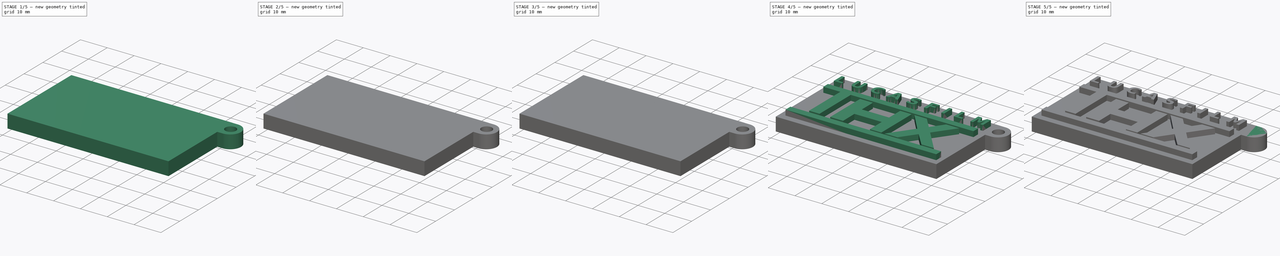
[diagram: build sequence overview — one tinted view per stage of 5, left to right]
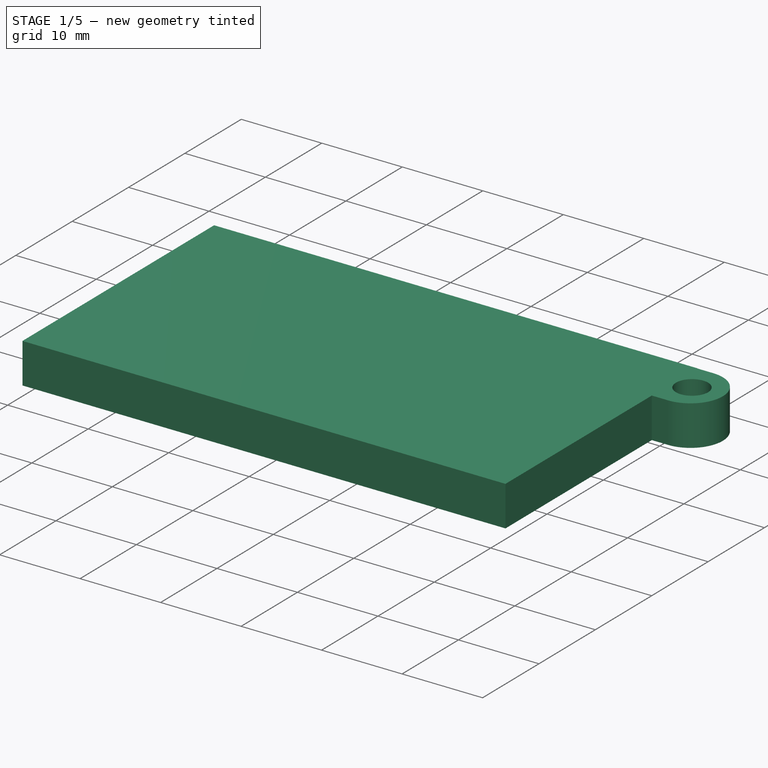
[diagram: stage 1 of 5 — iso view after this stage's code; geometry added in this stage tinted green]
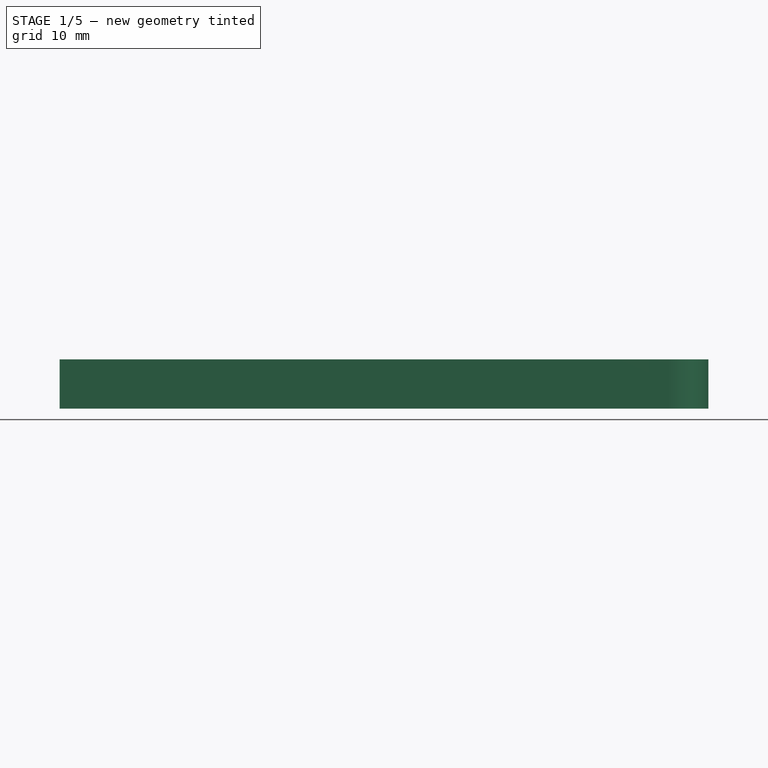
[diagram: stage 1 of 5 — front view after this stage's code; geometry added in this stage tinted green]
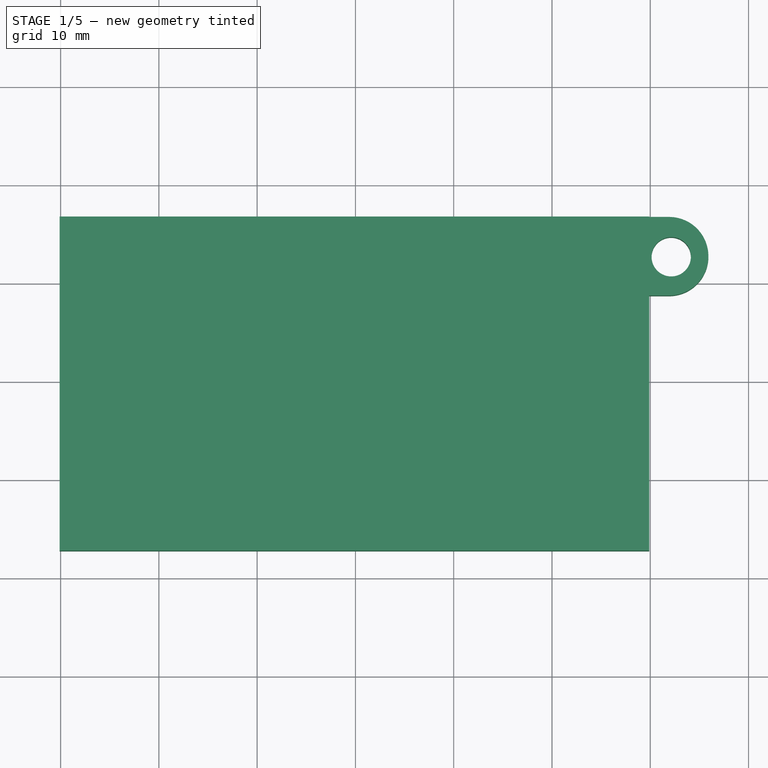
[diagram: stage 1 of 5 — top view after this stage's code; geometry added in this stage tinted green]
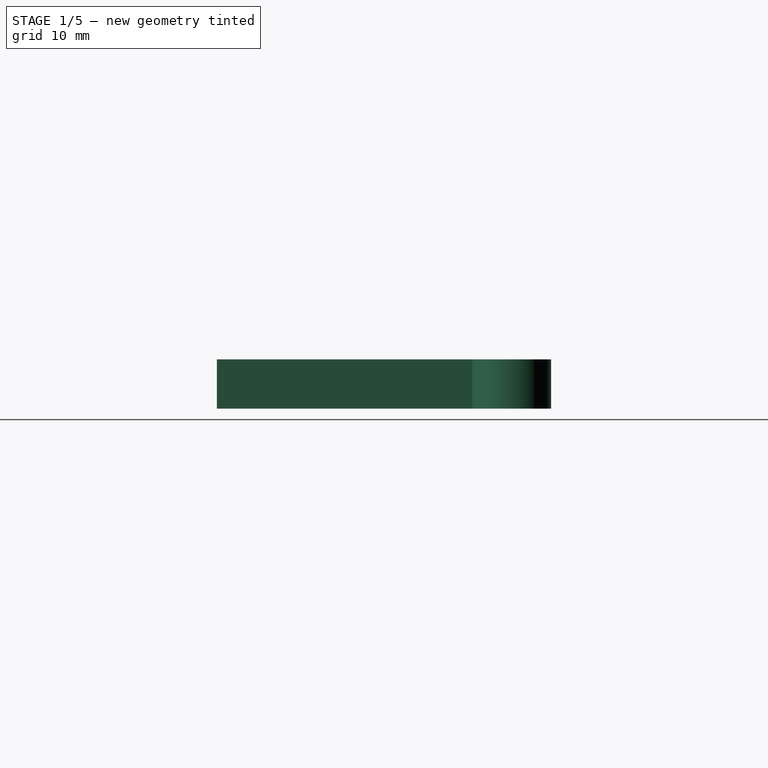
[diagram: stage 1 of 5 — right view after this stage's code; geometry added in this stage tinted green]
FCSTD DOCUMENT  (FreeCAD 0.14R3703 (Git))
Label: Llavero_THK
License: CC-BY 3.0
LicenseURL: http://creativecommons.org/licenses/by/3.0/
objects: Part::Feature×16, Part::Extrusion×14, Part::MultiFuse×3, PartDesign::Pad×2, Sketcher::SketchObject×2, Part::Cut×1, PartDesign::Pocket×1
note: 42 computed .brp shape members not serialized (recipe doc carries the construction recipe); baked Part::Feature solids carry a one-line shape summary decoded from their .brp

FEATURE [Part::Extrusion] Extrude007
  Base = -> path2934
  Dir = (0,0,5)
  Solid = true
FEATURE [Part::Extrusion] Extrude008
  Base = -> path2934001
  Dir = (0,0,5)
  Solid = true
FEATURE [Part::Cut] Cut
  Base = -> Extrude007
  Tool = -> Extrude008
FEATURE [Part::Feature] Fusion001001  label="Fusion002"
  shape: bbox 66.02 x 34 x 5 mm, 10 faces (baked)
FEATURE [Sketcher::SketchObject] Sketch002
  Placement = pos=(0,0,5) rot=(0,0,1;0rad)
  Support = -> Fusion001001 [Face10]
  sketch-geometry (1):
    g0: Circle CenterX=32.131 CenterY=12.6748 CenterZ=0 NormalX=0 NormalY=0 NormalZ=1 Radius=2
  constraints (1):
    c: Radius(g0) = 2
FEATURE [PartDesign::Pocket] Pocket
  Length = 5
  Sketch = -> Sketch002
  Type = 1
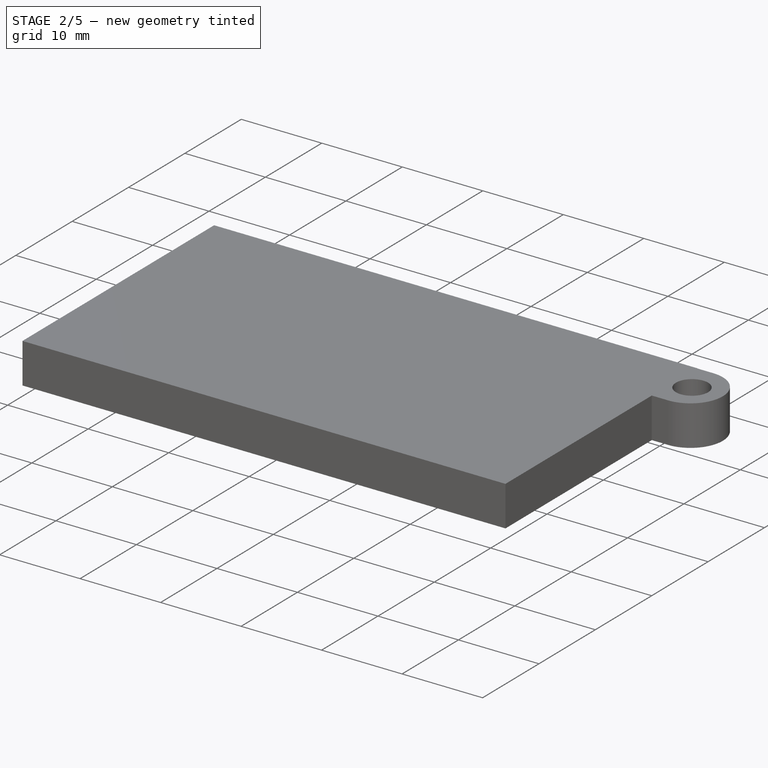
[diagram: stage 2 of 5 — iso view after this stage's code; geometry added in this stage tinted green]
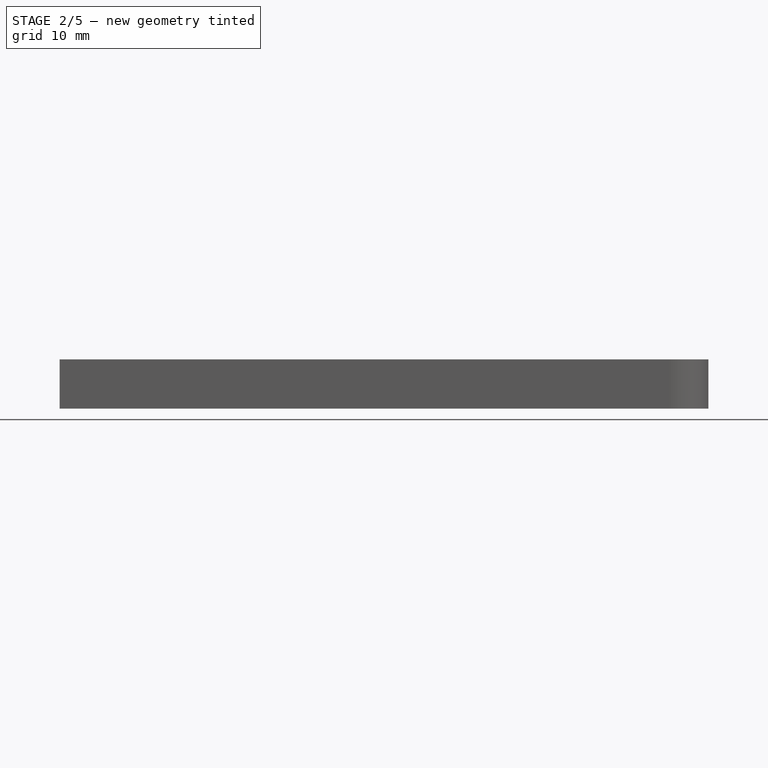
[diagram: stage 2 of 5 — front view after this stage's code; geometry added in this stage tinted green]
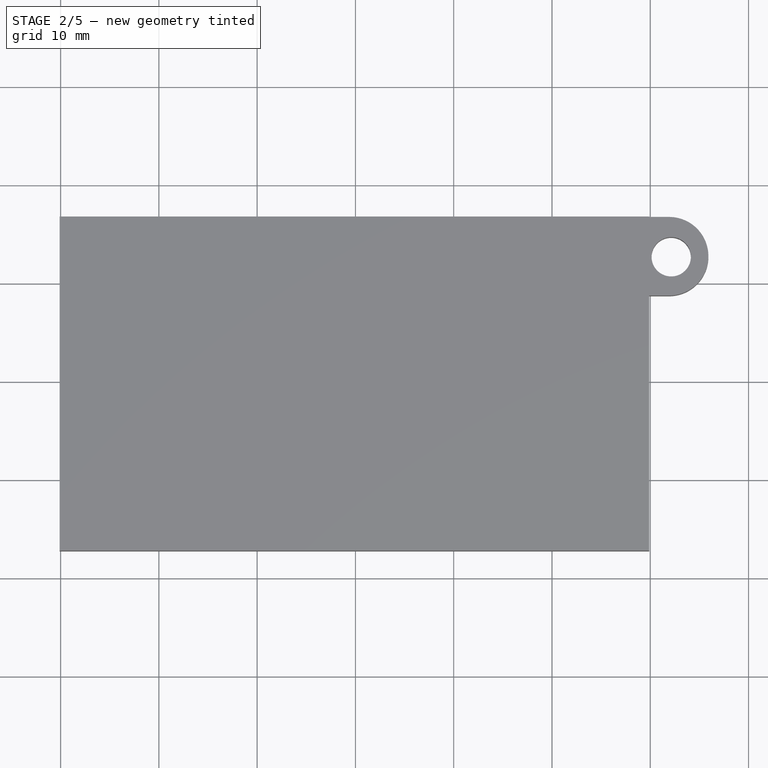
[diagram: stage 2 of 5 — top view after this stage's code; geometry added in this stage tinted green]
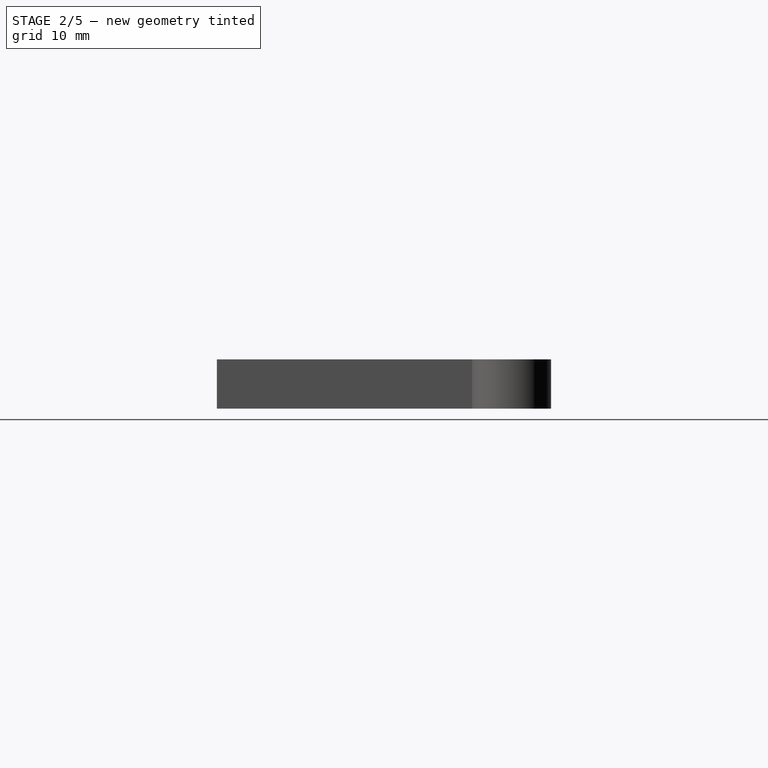
[diagram: stage 2 of 5 — right view after this stage's code; geometry added in this stage tinted green]
FEATURE [Part::Extrusion] Extrude010
  Base = -> path2938
  Dir = (0,0,5)
  Solid = true
FEATURE [Part::Extrusion] Extrude011
  Base = -> path2940
  Dir = (0,0,5)
  Solid = true
FEATURE [Part::Extrusion] Extrude012
  Base = -> path2942
  Dir = (0,0,5)
  Solid = true
FEATURE [Part::Extrusion] Extrude013
  Base = -> path2944
  Dir = (0,0,5)
  Solid = true
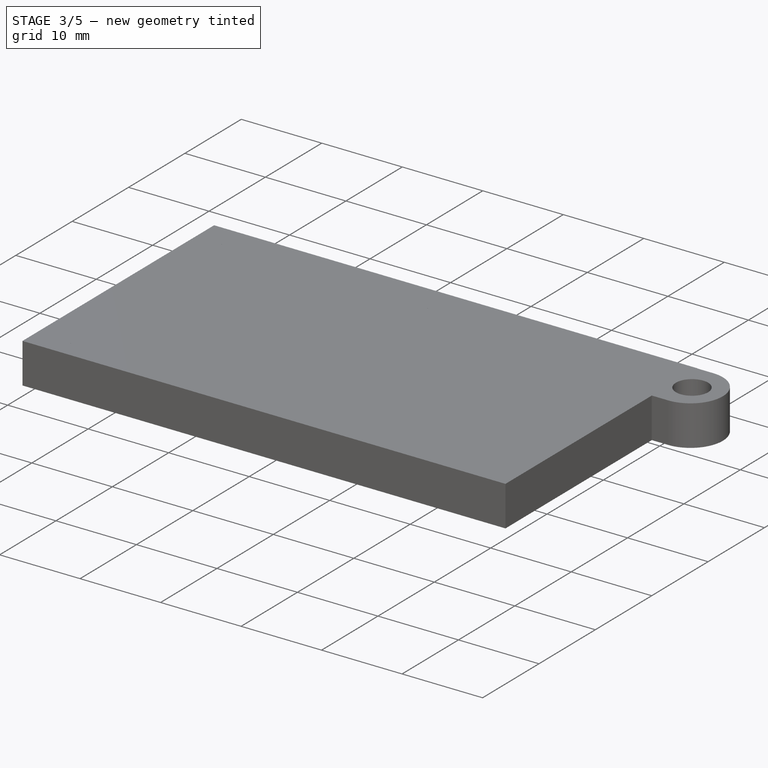
[diagram: stage 3 of 5 — iso view after this stage's code; geometry added in this stage tinted green]
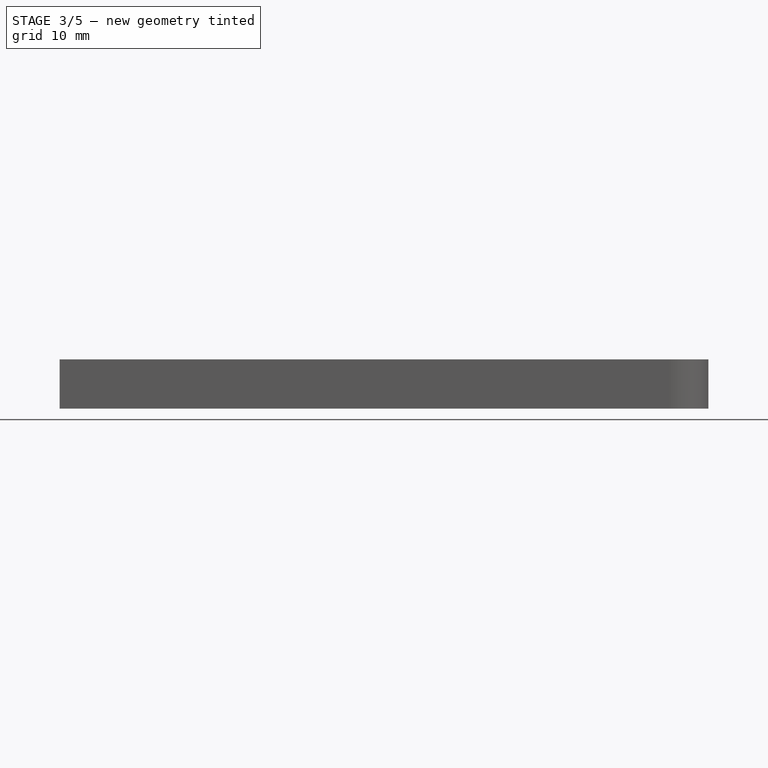
[diagram: stage 3 of 5 — front view after this stage's code; geometry added in this stage tinted green]
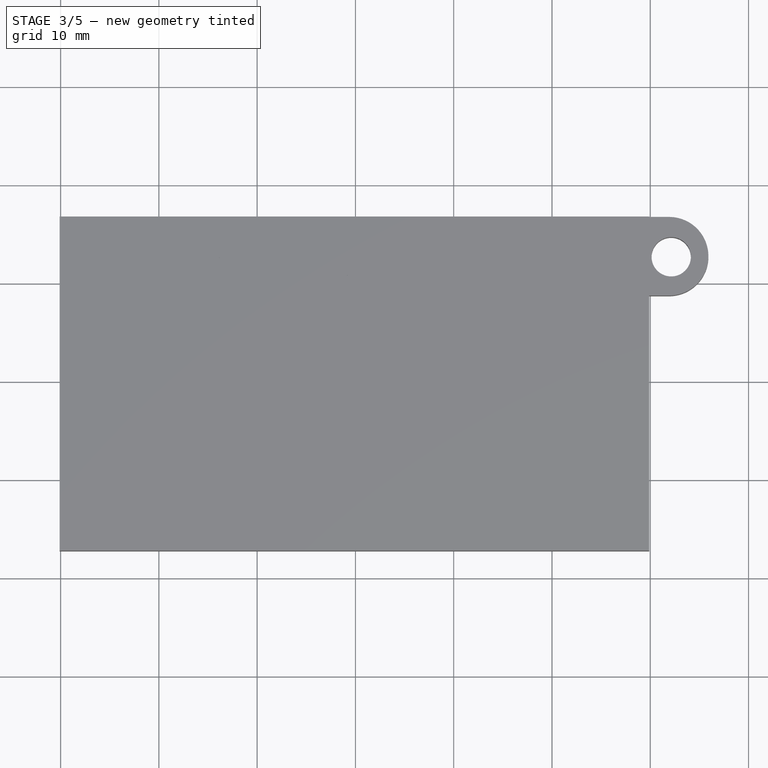
[diagram: stage 3 of 5 — top view after this stage's code; geometry added in this stage tinted green]
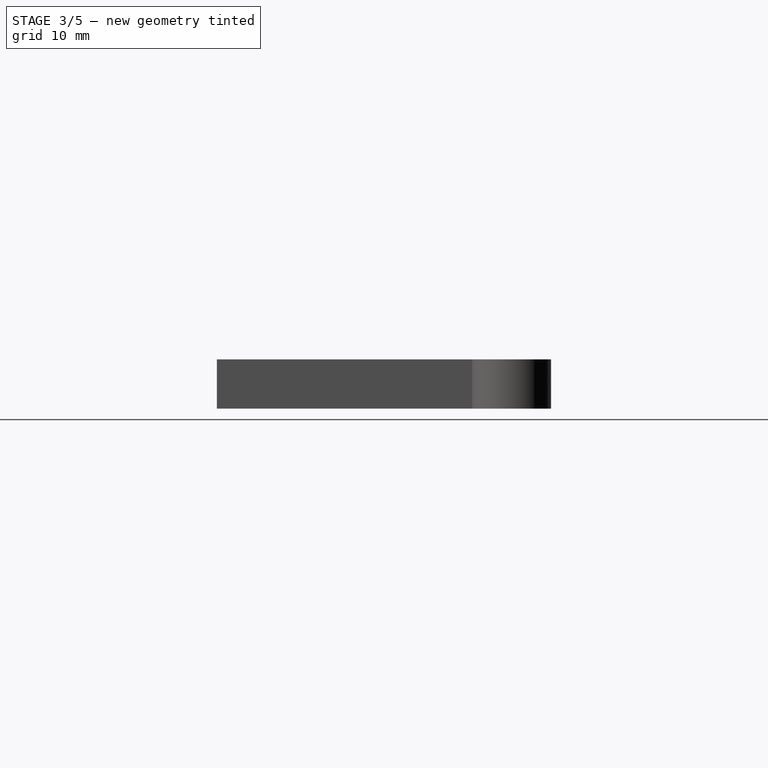
[diagram: stage 3 of 5 — right view after this stage's code; geometry added in this stage tinted green]
FEATURE [Part::Extrusion] Extrude003
  Base = -> path2874
  Dir = (0,0,5)
  Solid = true
FEATURE [Part::Extrusion] Extrude004
  Base = -> path2928
  Dir = (0,0,5)
  Solid = true
FEATURE [Part::Extrusion] Extrude005
  Base = -> path2930
  Dir = (0,0,5)
  Solid = true
FEATURE [Part::Extrusion] Extrude006
  Base = -> path2932
  Dir = (0,0,5)
  Solid = true
FEATURE [Part::Extrusion] Extrude009
  Base = -> path2936
  Dir = (0,0,5)
  Solid = true
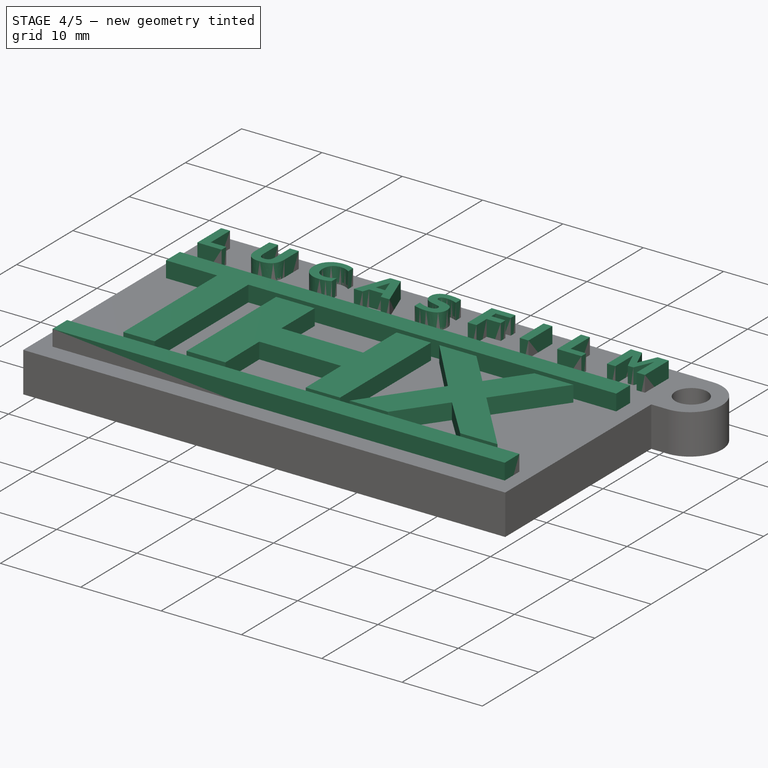
[diagram: stage 4 of 5 — iso view after this stage's code; geometry added in this stage tinted green]
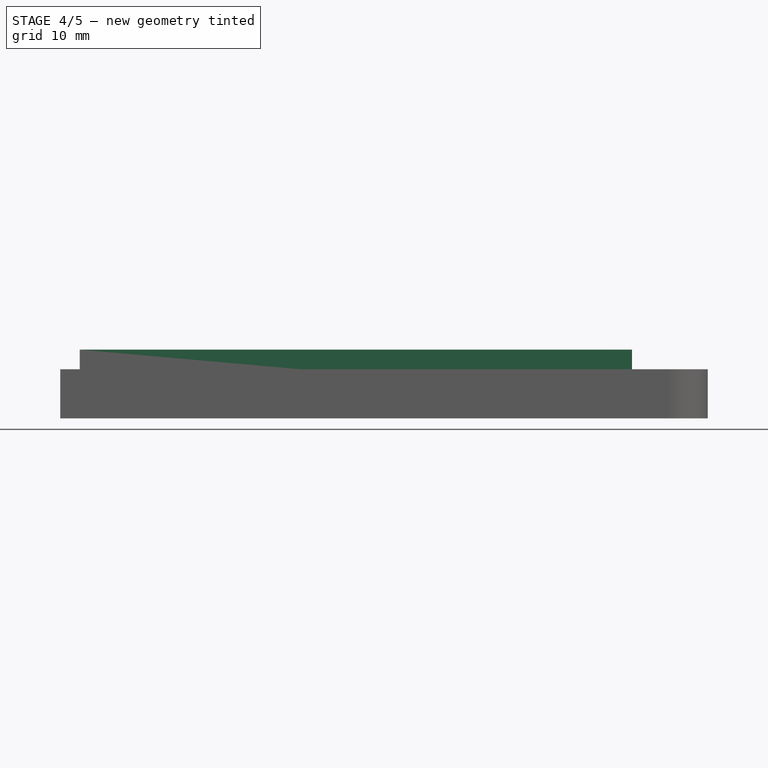
[diagram: stage 4 of 5 — front view after this stage's code; geometry added in this stage tinted green]
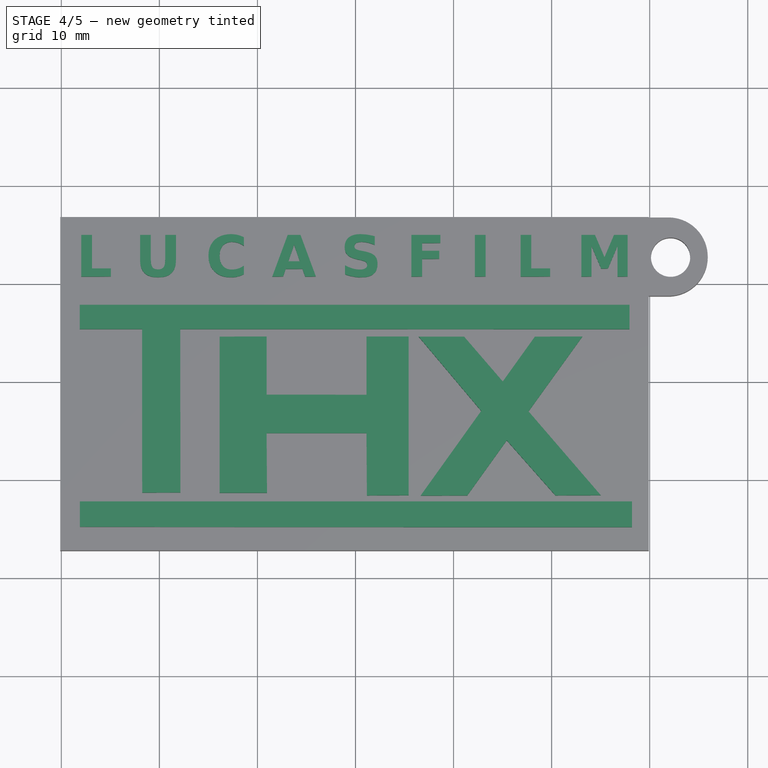
[diagram: stage 4 of 5 — top view after this stage's code; geometry added in this stage tinted green]
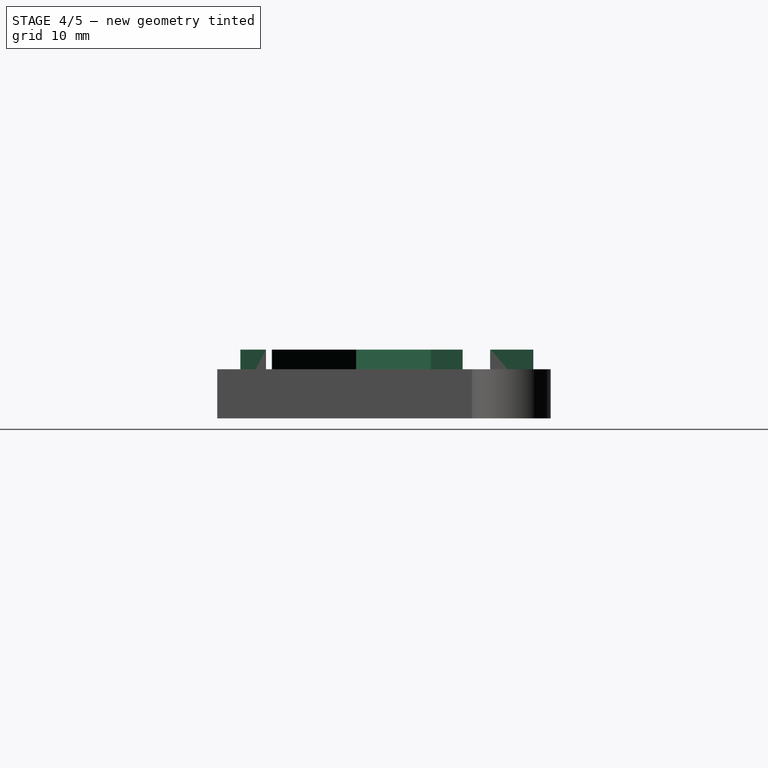
[diagram: stage 4 of 5 — right view after this stage's code; geometry added in this stage tinted green]
FEATURE [Part::Feature] path2868
  shape: bbox 56.07 x 19.15 x 2e-07 mm, 0 faces, 0 solids (baked)
FEATURE [Part::Feature] path2870
  shape: bbox 19.28 x 16.2 x 2e-07 mm, 0 faces, 0 solids (baked)
FEATURE [Part::Feature] path2872
  shape: bbox 18.57 x 16.22 x 2e-07 mm, 0 faces, 0 solids (baked)
FEATURE [Part::Feature] path2874
  shape: bbox 56.3 x 2.611 x 2e-07 mm, 0 faces, 0 solids (baked)
FEATURE [Part::Feature] path2928
  shape: bbox 3.014 x 4.242 x 2e-07 mm, 0 faces, 0 solids (baked)
FEATURE [Part::Feature] path2930
  shape: bbox 3.657 x 4.324 x 2e-07 mm, 0 faces, 0 solids (baked)
FEATURE [Part::Feature] path2932
  shape: bbox 3.608 x 4.401 x 2e-07 mm, 0 faces, 0 solids (baked)
FEATURE [Part::Feature] path2934
  shape: bbox 4.446 x 4.242 x 2e-07 mm, 0 faces, 0 solids (baked)
FEATURE [Part::Feature] path2934001
  shape: bbox 1.162 x 1.688 x 2e-07 mm, 0 faces, 0 solids (baked)
FEATURE [Part::Feature] path2936
  shape: bbox 3.347 x 4.401 x 2e-07 mm, 0 faces, 0 solids (baked)
FEATURE [Part::Feature] path2938
  shape: bbox 2.952 x 4.242 x 2e-07 mm, 0 faces, 0 solids (baked)
FEATURE [Part::Feature] path2940
  shape: bbox 1.094 x 4.242 x 2e-07 mm, 0 faces, 0 solids (baked)
FEATURE [Part::Feature] path2942
  shape: bbox 3.014 x 4.242 x 2e-07 mm, 0 faces, 0 solids (baked)
FEATURE [Part::Feature] path2944
  shape: bbox 4.719 x 4.242 x 2e-07 mm, 0 faces, 0 solids (baked)
FEATURE [Part::Extrusion] Extrude
  Base = -> path2868
  Dir = (0,0,5)
  Solid = true
FEATURE [Part::Extrusion] Extrude001
  Base = -> path2870
  Dir = (0,0,5)
  Solid = true
FEATURE [Part::Extrusion] Extrude002
  Base = -> path2872
  Dir = (0,0,5)
  Solid = true
FEATURE [Part::MultiFuse] Fusion
  Placement = pos=(0,0,2) rot=(0,0,1;0rad)
  Shapes = -> [Extrude,Extrude010,Extrude006,Extrude002,Cut,Extrude011,Extrude013,Extrude003,Extrude009,Extrude012,Extrude005,Extrude004,Extrude001]
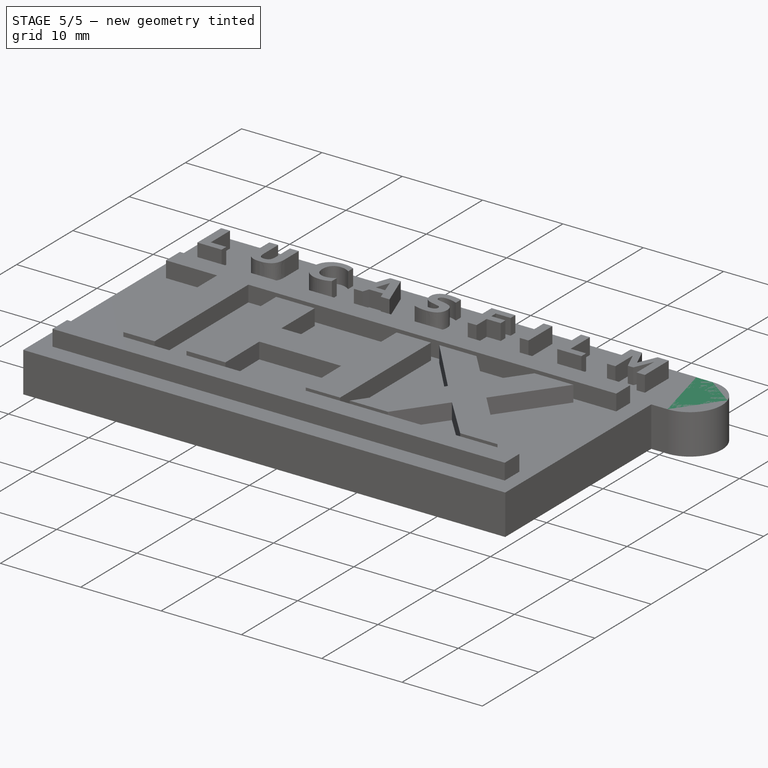
[diagram: stage 5 of 5 — iso view after this stage's code; geometry added in this stage tinted green]
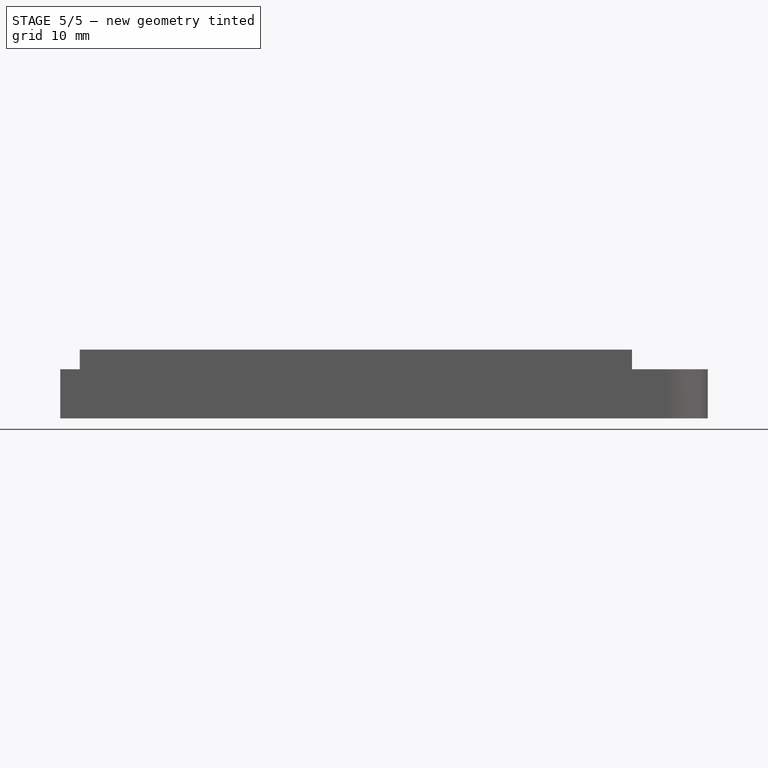
[diagram: stage 5 of 5 — front view after this stage's code; geometry added in this stage tinted green]
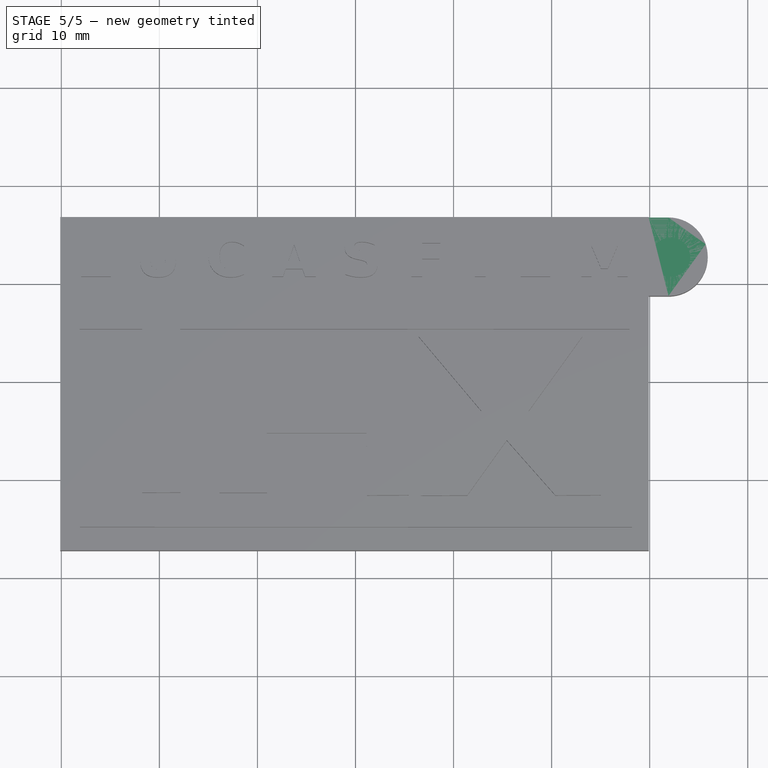
[diagram: stage 5 of 5 — top view after this stage's code; geometry added in this stage tinted green]
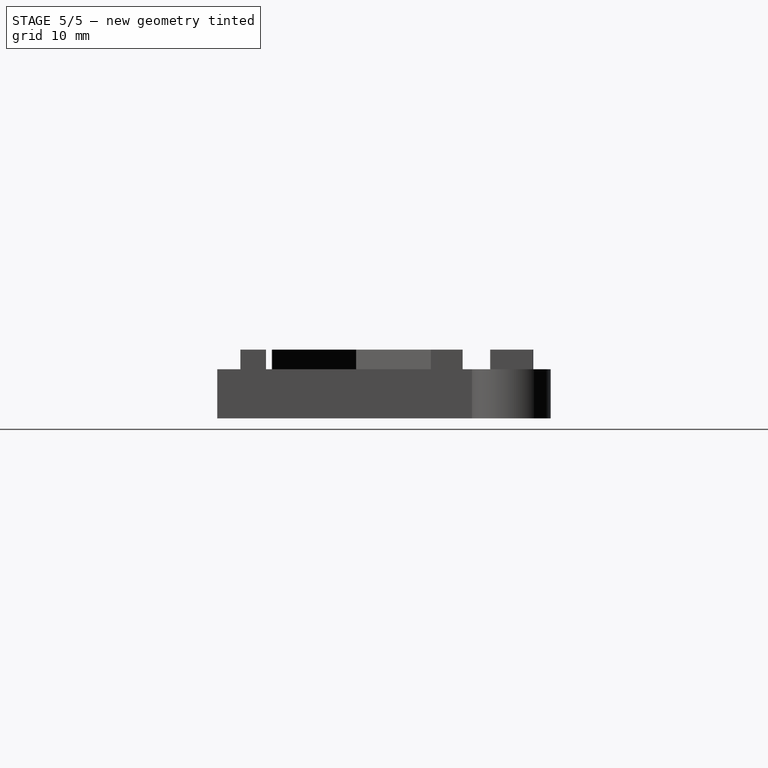
[diagram: stage 5 of 5 — right view after this stage's code; geometry added in this stage tinted green]
FEATURE [PartDesign::Pad] Pad
  Length = 5
  Length2 = 100
  Type = 0
FEATURE [Sketcher::SketchObject] Sketch001
  sketch-geometry (4):
    g0: ArcOfCircle CenterX=29.1136 CenterY=12.7286 CenterZ=0 NormalX=0 NormalY=0 NormalZ=1 Radius=4 StartAngle=1.5708 EndAngle=4.71239
    g1: ArcOfCircle CenterX=31.9157 CenterY=12.7286 CenterZ=0 NormalX=0 NormalY=0 NormalZ=1 Radius=4 StartAngle=4.71239 EndAngle=7.85398
    g2: LineSegment StartX=29.1136 StartY=8.7286 StartZ=0 EndX=31.9157 EndY=8.7286 EndZ=0
    g3: LineSegment StartX=29.1136 StartY=16.7286 StartZ=0 EndX=31.9157 EndY=16.7286 EndZ=0
  constraints (11):
    c: Tangent(g0,g2)
    c: Tangent(g0,g3)
    c: Tangent(g1,g2)
    c: Tangent(g1,g3)
    c: Coincident(g0,g3)
    c: Coincident(g0,g2)
    c: Coincident(g2,g1)
    c: Coincident(g3,g1)
    c: Horizontal(g2)
    c: Equal(g0,g1)
    c: Radius(g1) = 4
FEATURE [PartDesign::Pad] Pad001
  Length = 5
  Length2 = 100
  Sketch = -> Sketch001
  Type = 0
FEATURE [Part::MultiFuse] Fusion001
  Shapes = -> [Pad,Pad001]
FEATURE [Part::MultiFuse] Fusion001002
  Shapes = -> [Fusion,Pocket]
FEATURE [Part::Feature] Fusion001002001  label="Fusion001003"
  shape: bbox 66.02 x 34 x 7 mm, 171 faces (baked)
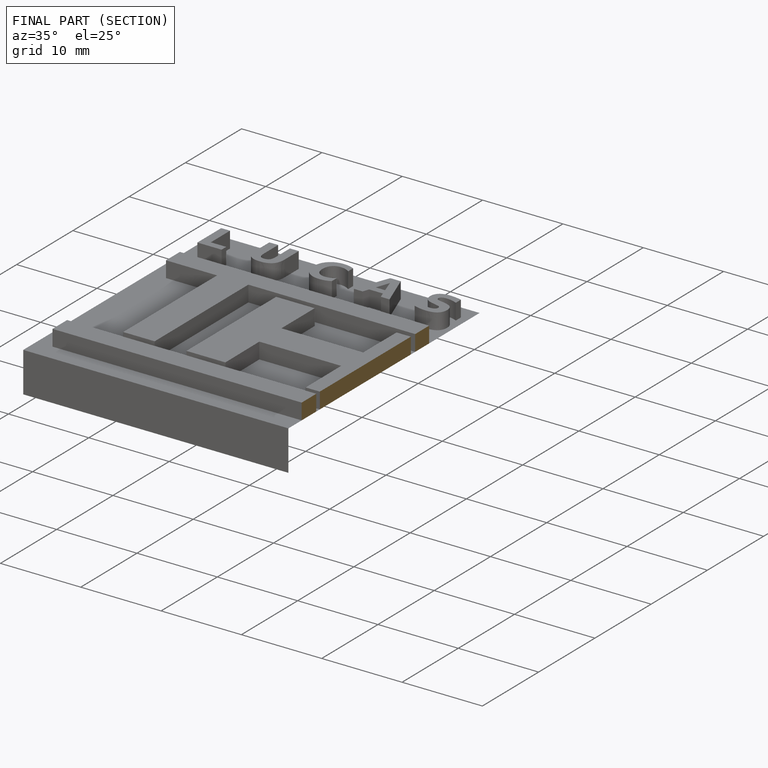
[diagram: finished part — half-section view (interior)]
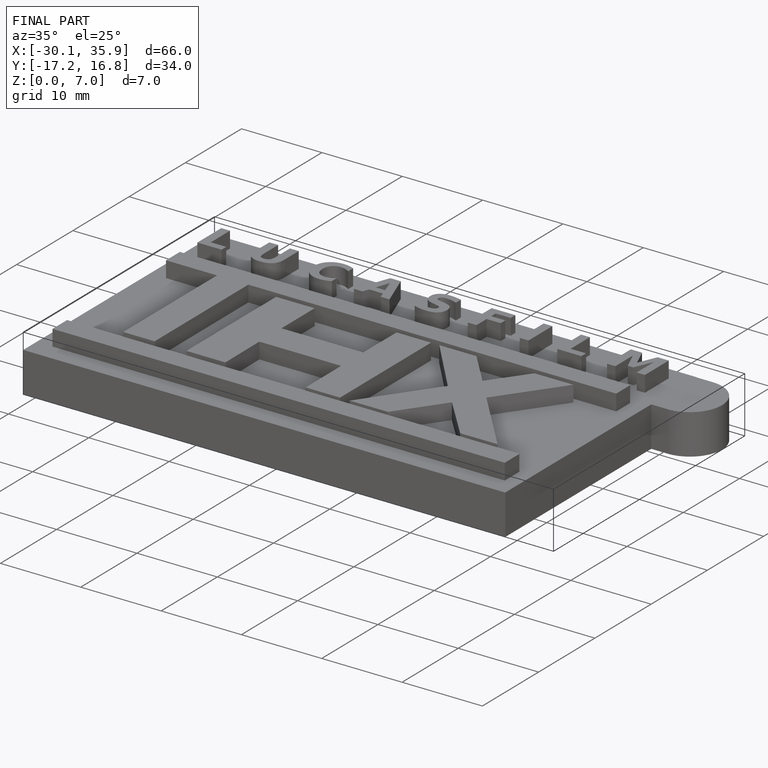
[diagram: finished part — iso view with bounding-box wireframe]
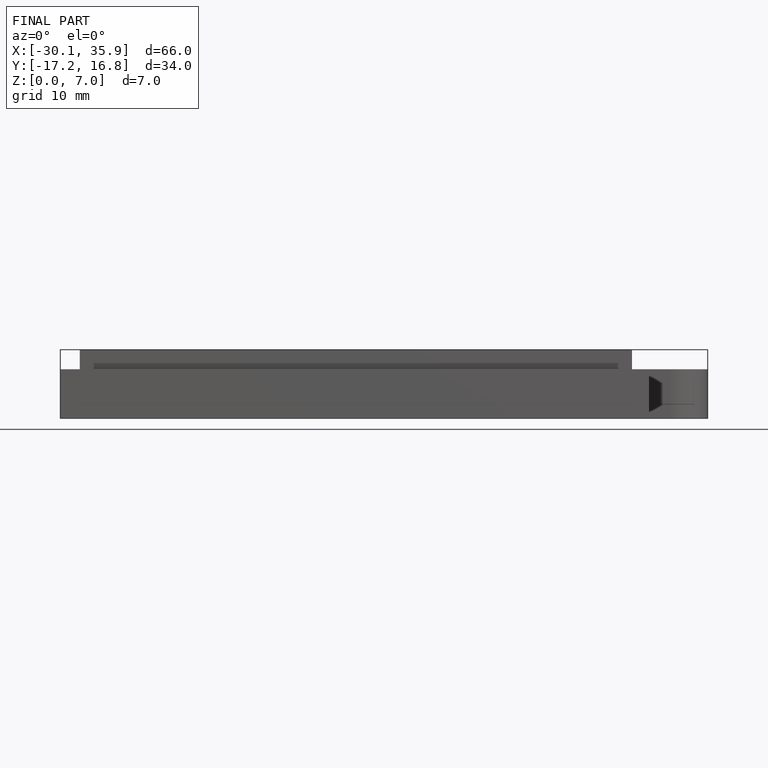
[diagram: finished part — front view with bounding-box wireframe]
